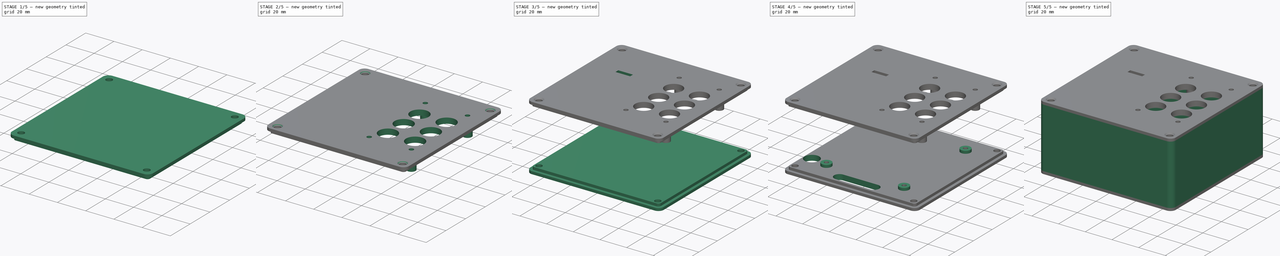
[diagram: build sequence overview — one tinted view per stage of 5, left to right]
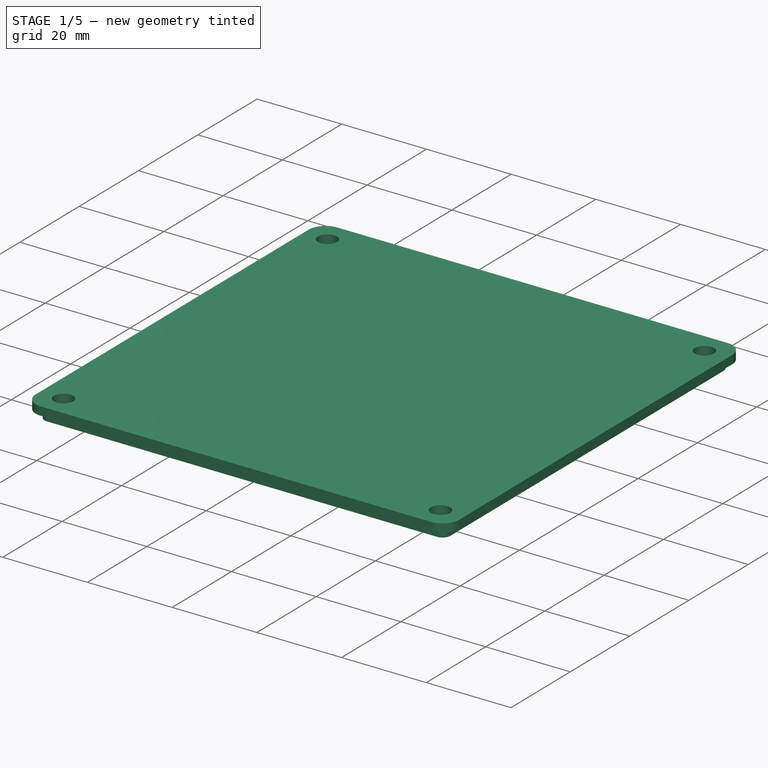
[diagram: stage 1 of 5 — iso view after this stage's code; geometry added in this stage tinted green]
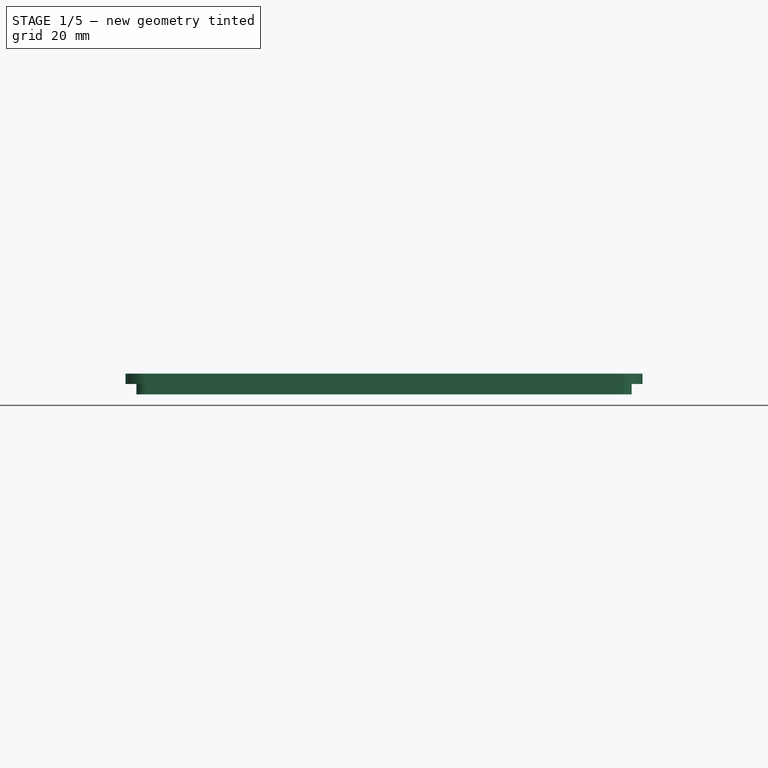
[diagram: stage 1 of 5 — front view after this stage's code; geometry added in this stage tinted green]
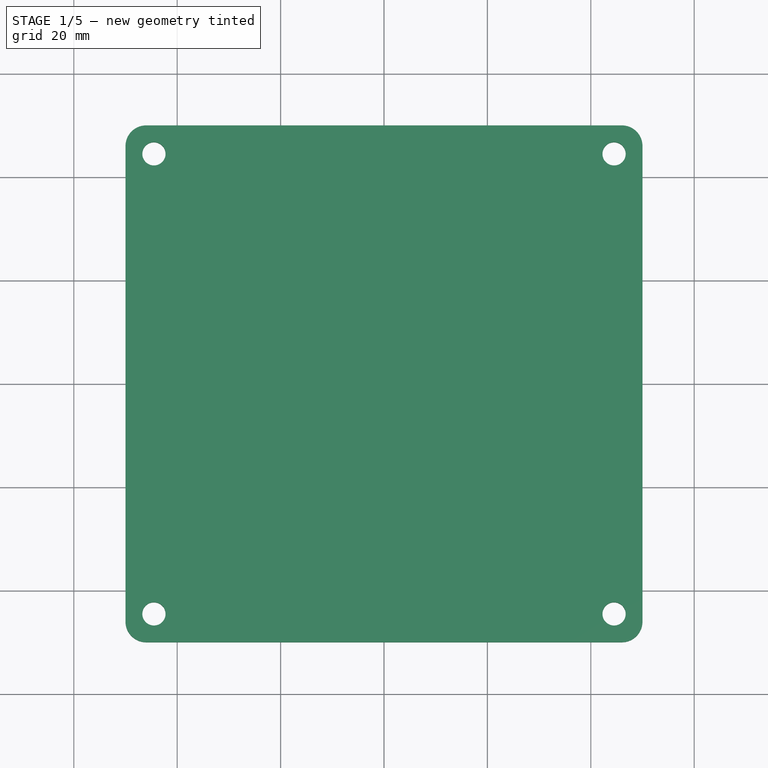
[diagram: stage 1 of 5 — top view after this stage's code; geometry added in this stage tinted green]
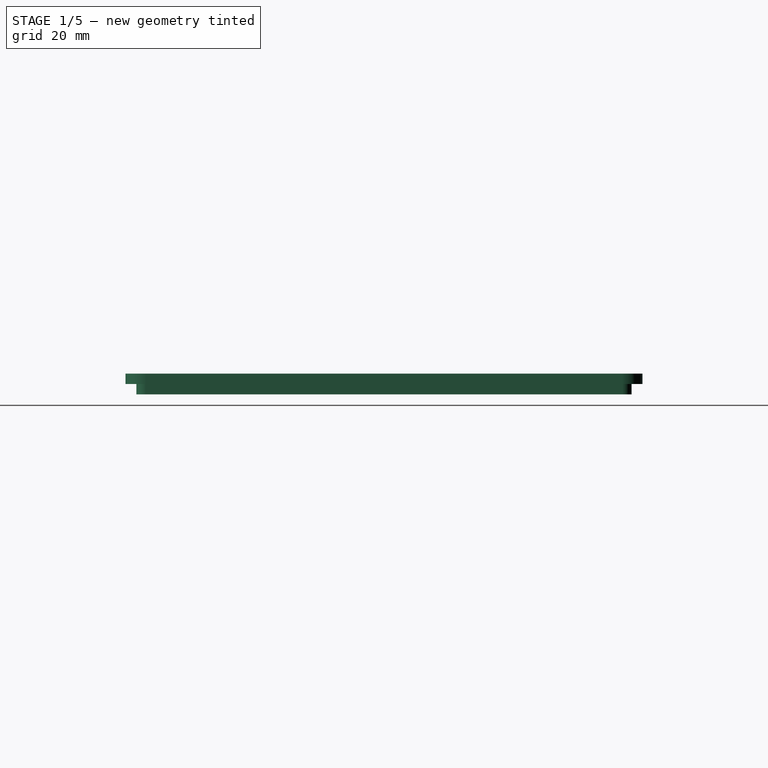
[diagram: stage 1 of 5 — right view after this stage's code; geometry added in this stage tinted green]
FCSTD DOCUMENT  (FreeCAD 0.19R)
Label: dro
License: All rights reserved
LicenseURL: http://en.wikipedia.org/wiki/All_rights_reserved
objects: Sketcher::SketchObject×15, PartDesign::Pad×8, PartDesign::Pocket×7, PartDesign::Mirrored×4, PartDesign::Body×3, PartDesign::MultiTransform×2, Spreadsheet::Sheet×1, PartDesign::Chamfer×1, TechDraw::DrawSVGTemplate×1, TechDraw::DrawViewPart×1, TechDraw::DrawPage×1
note: 56 computed .brp shape members not serialized (recipe doc carries the construction recipe); baked Part::Feature solids carry a one-line shape summary decoded from their .brp

FEATURE [PartDesign::Body] Body  label="Box"
  Group = -> [Sketch,Pad,Sketch002,Pocket,Sketch003,Pad001,MultiTransform,Mirrored,Mirrored001]
  Origin = -> Origin
  Tip = -> MultiTransform
FEATURE [Sketcher::SketchObject] Sketch004
  AttachmentOffset = pos=(0,0,45) rot=(0,0,1;0rad)
  FullyConstrained = true
  MapMode = 5
  Placement = pos=(0,0,45) rot=(0,0,1;0rad)
  Support = -> [XY_Plane001]
  expr: Constraints[16] = Spreadsheet.box_outer_raduis
  expr: Constraints[17] = Spreadsheet.box_outer_width
  expr: Constraints[18] = Spreadsheet.box_outer_length
  expr: .AttachmentOffset.Base.z = Spreadsheet.box_height
  sketch-geometry (8):
    g0: LineSegment StartX=-46 StartY=50 StartZ=0 EndX=46 EndY=50 EndZ=0
    g1: LineSegment StartX=50 StartY=46 StartZ=0 EndX=50 EndY=-46 EndZ=0
    g2: LineSegment StartX=46 StartY=-50 StartZ=0 EndX=-46 EndY=-50 EndZ=0
    g3: LineSegment StartX=-50 StartY=-46 StartZ=0 EndX=-50 EndY=46 EndZ=0
    g4: ArcOfCircle CenterX=-46 CenterY=46 CenterZ=0 NormalX=0 NormalY=0 NormalZ=1 AngleXU=0 Radius=4 StartAngle=1.5708 EndAngle=3.14159
    g5: ArcOfCircle CenterX=-46 CenterY=-46 CenterZ=0 NormalX=0 NormalY=0 NormalZ=1 AngleXU=0 Radius=4 StartAngle=3.14159 EndAngle=4.71239
    g6: ArcOfCircle CenterX=46 CenterY=-46 CenterZ=0 NormalX=0 NormalY=0 NormalZ=1 AngleXU=0 Radius=4 StartAngle=4.71239 EndAngle=6.28319
    g7: ArcOfCircle CenterX=46 CenterY=46 CenterZ=0 NormalX=0 NormalY=0 NormalZ=1 AngleXU=0 Radius=4 StartAngle=4e-16 EndAngle=1.5708
  constraints (19):
    c: Horizontal(g0)
    c: Horizontal(g2)
    c: Vertical(g1)
    c: Vertical(g3)
    c: Tangent(g0,g4) = 1.5708
    c: Tangent(g3,g4) = 1.5708
    c: Tangent(g3,g5) = 1.5708
    c: Tangent(g2,g5) = 1.5708
    c: Tangent(g2,g6) = 1.5708
    c: Tangent(g1,g6) = 1.5708
    c: Tangent(g1,g7) = 1.5708
    c: Tangent(g0,g7) = 1.5708
    c: Symmetric(g4,g6,g-1)
    c: Equal(g4,g7)
    c: Equal(g7,g6)
    c: Equal(g6,g5)
    c: Radius(g4) = 4
    c: DistanceX(g3,g1) = 100
    c: DistanceY(g2,g0) = 100
FEATURE [PartDesign::Pad] Pad002
  Direction = (1,1,1)
  Length = 2
  Length2 = 100
  Profile = -> Sketch004
  Type = 0
  expr: Length = Spreadsheet.box_wall_thickness
FEATURE [Sketcher::SketchObject] Sketch005
  AttachmentOffset = pos=(0,0,45) rot=(0,0,1;0rad)
  FullyConstrained = true
  MapMode = 5
  Placement = pos=(0,0,45) rot=(0,0,1;0rad)
  Support = -> [XY_Plane001]
  expr: Constraints[16] = Spreadsheet.box_inner_raduis - Spreadsheet.clearance_sides
  expr: Constraints[17] = Spreadsheet.box_inner_length - Spreadsheet.clearance_sides
  expr: Constraints[18] = Spreadsheet.box_inner_width - Spreadsheet.clearance_sides
  expr: .AttachmentOffset.Base.z = Spreadsheet.box_height
  sketch-geometry (8):
    g0: LineSegment StartX=-46.1 StartY=47.9 StartZ=0 EndX=46.1 EndY=47.9 EndZ=0
    g1: LineSegment StartX=47.9 StartY=46.1 StartZ=0 EndX=47.9 EndY=-46.1 EndZ=0
    g2: LineSegment StartX=46.1 StartY=-47.9 StartZ=0 EndX=-46.1 EndY=-47.9 EndZ=0
    g3: LineSegment StartX=-47.9 StartY=-46.1 StartZ=0 EndX=-47.9 EndY=46.1 EndZ=0
    g4: ArcOfCircle CenterX=-46.1 CenterY=46.1 CenterZ=0 NormalX=0 NormalY=0 NormalZ=1 AngleXU=0 Radius=1.8 StartAngle=1.5708 EndAngle=3.14159
    g5: ArcOfCircle CenterX=-46.1 CenterY=-46.1 CenterZ=0 NormalX=0 NormalY=0 NormalZ=1 AngleXU=0 Radius=1.8 StartAngle=3.14159 EndAngle=4.71239
    g6: ArcOfCircle CenterX=46.1 CenterY=-46.1 CenterZ=0 NormalX=0 NormalY=0 NormalZ=1 AngleXU=0 Radius=1.8 StartAngle=4.71239 EndAngle=6.28319
    g7: ArcOfCircle CenterX=46.1 CenterY=46.1 CenterZ=0 NormalX=0 NormalY=0 NormalZ=1 AngleXU=0 Radius=1.8 StartAngle=3e-16 EndAngle=1.5708
  constraints (19):
    c: Horizontal(g0)
    c: Horizontal(g2)
    c: Vertical(g1)
    c: Vertical(g3)
    c: Tangent(g0,g4) = 1.5708
    c: Tangent(g3,g4) = 1.5708
    c: Tangent(g3,g5) = 1.5708
    c: Tangent(g2,g5) = 1.5708
    c: Tangent(g2,g6) = 1.5708
    c: Tangent(g1,g6) = 1.5708
    c: Tangent(g1,g7) = 1.5708
    c: Tangent(g0,g7) = 1.5708
    c: Equal(g4,g7)
    c: Equal(g7,g6)
    c: Equal(g6,g5)
    c: Symmetric(g4,g6,g-1)
    c: Radius(g4) = 1.8
    c: DistanceY(g2,g0) = 95.8
    c: DistanceX(g3,g1) = 95.8
FEATURE [PartDesign::Pad] Pad003
  BaseFeature = -> Pad002
  Direction = (1,1,1)
  Length = 2
  Length2 = 100
  Profile = -> Sketch005
  Reversed = true
  Type = 0
  expr: Length = Spreadsheet.box_wall_thickness
FEATURE [Sketcher::SketchObject] Sketch006
  AttachmentOffset = pos=(0,0,43) rot=(0,0,1;0rad)
  FullyConstrained = true
  MapMode = 5
  Placement = pos=(0,0,43) rot=(0,0,1;0rad)
  Support = -> [XY_Plane001]
  expr: Constraints[0] = Spreadsheet.clearance_hole
  expr: Constraints[1] = Spreadsheet.hole_center_width
  expr: Constraints[2] = Spreadsheet.hole_center_length
  expr: .AttachmentOffset.Base.z = Spreadsheet.box_height - Spreadsheet.box_wall_thickness
  sketch-geometry (1):
    g0: Circle CenterX=-44.5 CenterY=44.5 CenterZ=0 NormalX=0 NormalY=0 NormalZ=1 AngleXU=0 Radius=2.25
  constraints (3):
    c: Diameter(g0) = 4.5
    c: DistanceX(g0,g-1) = 44.5
    c: DistanceY(g-1,g0) = 44.5
FEATURE [PartDesign::Pocket] Pocket001
  BaseFeature = -> Pad003
  Length = 5
  Length2 = 100
  Profile = -> Sketch006
  Reversed = true
  Type = 1
FEATURE [PartDesign::Mirrored] Mirrored002
  MirrorPlane = -> XZ_Plane001
FEATURE [PartDesign::Mirrored] Mirrored003
  MirrorPlane = -> Sketch006 [V_Axis]
FEATURE [PartDesign::MultiTransform] MultiTransform001
  BaseFeature = -> Pocket001
  Originals = -> [Pocket001]
  Transformations = -> [Mirrored002,Mirrored003]
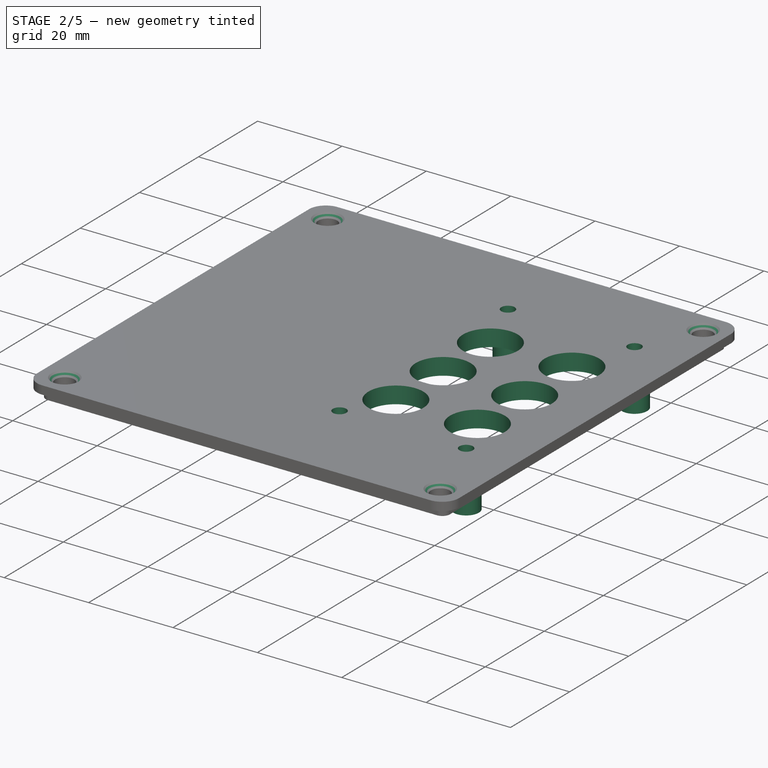
[diagram: stage 2 of 5 — iso view after this stage's code; geometry added in this stage tinted green]
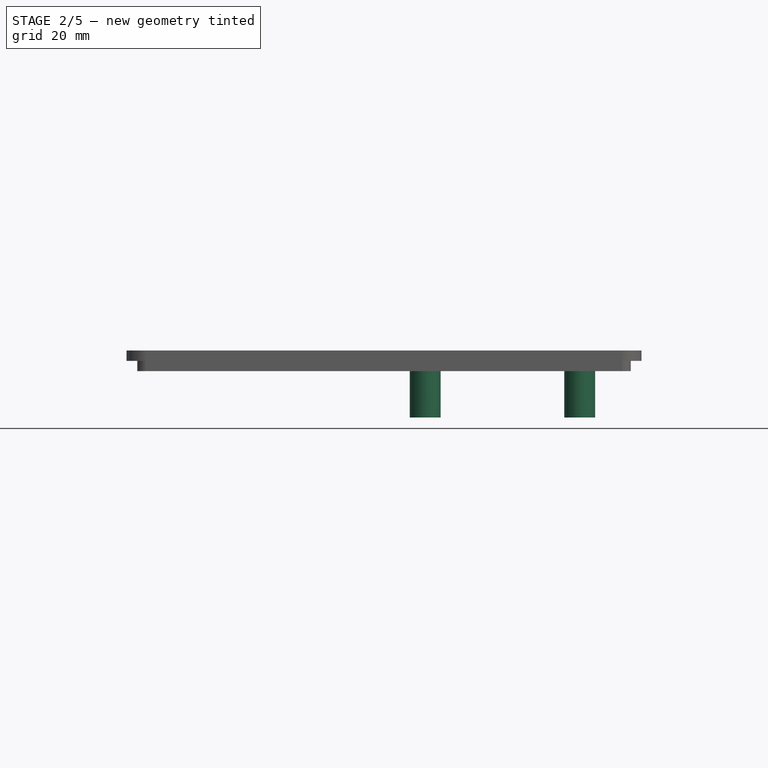
[diagram: stage 2 of 5 — front view after this stage's code; geometry added in this stage tinted green]
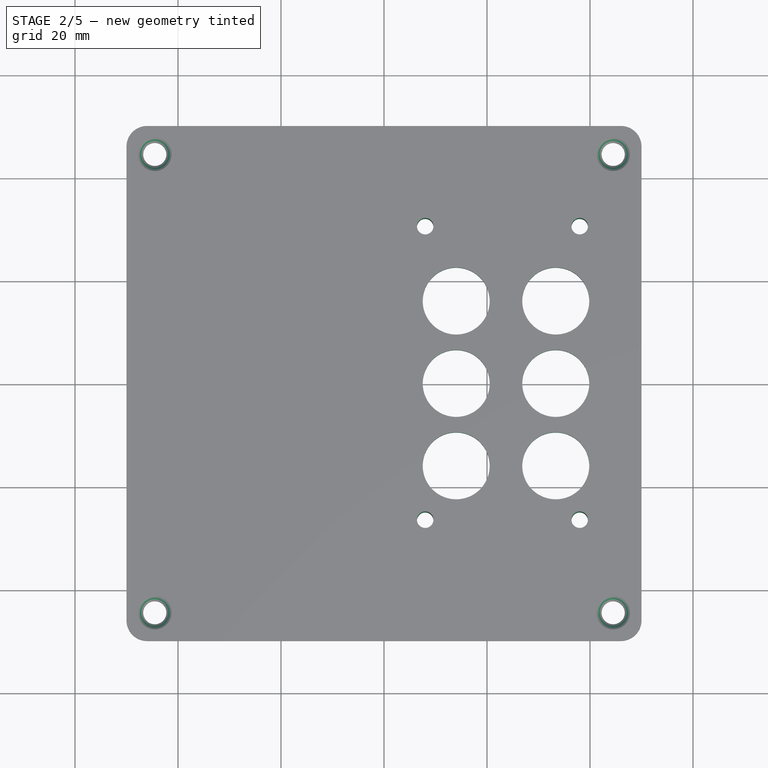
[diagram: stage 2 of 5 — top view after this stage's code; geometry added in this stage tinted green]
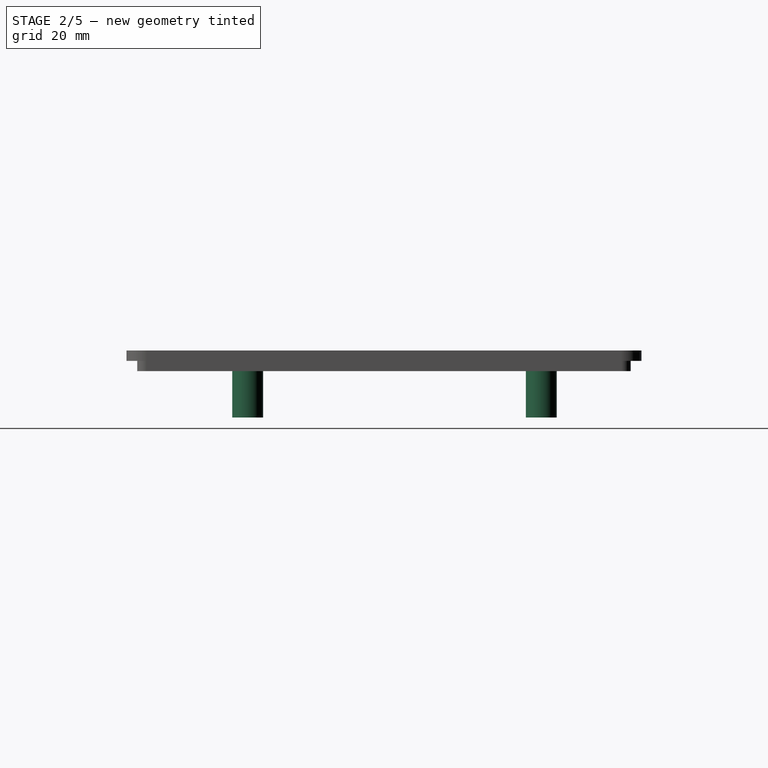
[diagram: stage 2 of 5 — right view after this stage's code; geometry added in this stage tinted green]
FEATURE [PartDesign::Chamfer] Chamfer001
  Angle = 45
  Base = -> MultiTransform001 [Edge32,Edge31,Edge29,Edge30]
  BaseFeature = -> MultiTransform001
  ChamferType = 0
  FlipDirection = false
  Size = 1
  Size2 = 1
  SupportTransform = false
FEATURE [Sketcher::SketchObject] Sketch017
  AttachmentOffset = pos=(0,0,43.7) rot=(0,0,1;0rad)
  FullyConstrained = true
  MapMode = 5
  Placement = pos=(0,0,43.7) rot=(0,0,1;0rad)
  Support = -> [XY_Plane001]
  sketch-geometry (4):
    g0: Circle CenterX=8 CenterY=30.54 CenterZ=0 NormalX=0 NormalY=0 NormalZ=1 AngleXU=0 Radius=3
    g1: Circle CenterX=38 CenterY=30.54 CenterZ=0 NormalX=0 NormalY=0 NormalZ=1 AngleXU=0 Radius=3
    g2: Circle CenterX=8 CenterY=-26.46 CenterZ=0 NormalX=0 NormalY=0 NormalZ=1 AngleXU=0 Radius=3
    g3: Circle CenterX=38 CenterY=-26.46 CenterZ=0 NormalX=0 NormalY=0 NormalZ=1 AngleXU=0 Radius=3
  constraints (12):
    c: Equal(g0,g1)
    c: Equal(g1,g2)
    c: Equal(g2,g3)
    c: Diameter(g0) = 6
    c: DistanceX(g2,g3) = 30
    c: Horizontal(g0,g1)
    c: Horizontal(g2,g3)
    c: Vertical(g2,g0)
    c: DistanceY(g3,g1) = 57
    c: DistanceY(g-1,g1) = 30.54
    c: Vertical(g1,g3)
    c: DistanceX(g-1,g0) = 8
FEATURE [Sketcher::SketchObject] Sketch018
  AttachmentOffset = pos=(0,0,28.6) rot=(0,0,1;0rad)
  FullyConstrained = true
  MapMode = 5
  Placement = pos=(0,0,47) rot=(0,0,1;0rad)
  expr: Constraints[25] = -14.02
  expr: .Placement.Base.z = Spreadsheet.box_height + Spreadsheet.box_wall_thickness
  sketch-geometry (10):
    g0: Circle CenterX=8 CenterY=30.54 CenterZ=0 NormalX=0 NormalY=0 NormalZ=1 AngleXU=0 Radius=1.6
    g1: Circle CenterX=38 CenterY=30.54 CenterZ=0 NormalX=0 NormalY=0 NormalZ=1 AngleXU=0 Radius=1.6
    g2: Circle CenterX=8 CenterY=-26.46 CenterZ=0 NormalX=0 NormalY=0 NormalZ=1 AngleXU=0 Radius=1.6
    g3: Circle CenterX=38 CenterY=-26.46 CenterZ=0 NormalX=0 NormalY=0 NormalZ=1 AngleXU=0 Radius=1.6
    g4: Circle CenterX=33.35 CenterY=16 CenterZ=0 NormalX=0 NormalY=0 NormalZ=1 AngleXU=0 Radius=6.5
    g5: Circle CenterX=14.02 CenterY=16 CenterZ=0 NormalX=0 NormalY=0 NormalZ=1 AngleXU=0 Radius=6.5
    g6: Circle CenterX=33.35 CenterY=1e-16 CenterZ=0 NormalX=0 NormalY=0 NormalZ=1 AngleXU=0 Radius=6.5
    g7: Circle CenterX=14.02 CenterY=1e-16 CenterZ=0 NormalX=0 NormalY=0 NormalZ=1 AngleXU=0 Radius=6.5
    g8: Circle CenterX=14.02 CenterY=-16 CenterZ=0 NormalX=0 NormalY=0 NormalZ=1 AngleXU=0 Radius=6.5
    g9: Circle CenterX=33.35 CenterY=-16 CenterZ=0 NormalX=0 NormalY=0 NormalZ=1 AngleXU=0 Radius=6.5
  constraints (29):
    c: Equal(g0,g1)
    c: Equal(g1,g2)
    c: Equal(g2,g3)
    c: Diameter(g0) = 3.2
    c: Equal(g5,g4)
    c: Equal(g4,g7)
    c: Equal(g7,g6)
    c: Equal(g6,g8)
    c: Equal(g8,g9)
    c: Diameter(g5) = 13
    c: Vertical(g5,g7)
    c: Vertical(g7,g8)
    c: Vertical(g4,g6)
    c: DistanceX(g5,g4) = 19.33
    c: Horizontal(g7,g6)
    c: Horizontal(g8,g9)
    c: DistanceY(g6,g4) = 16
    c: DistanceY(g9,g6) = 16
    c: Symmetric(g4,g9,g-1)
    c: Horizontal(g0,g1)
    c: Horizontal(g2,g3)
    c: Vertical(g2,g0)
    c: DistanceY(g3,g1) = 57
    c: DistanceY(g-1,g1) = 30.54
    c: Vertical(g1,g3)
    c: DistanceX(g5,g-1) = -14.02
    c: DistanceX(g0,g1) = 30
    c: DistanceX(g-1,g2) = 8
    c: Horizontal(g4,g5)
FEATURE [PartDesign::Pad] Pad007
  BaseFeature = -> Chamfer001
  Direction = (1,1,1)
  Length = 9.7
  Length2 = 100
  Profile = -> Sketch017
  Reversed = true
  Type = 0
FEATURE [PartDesign::Pocket] Pocket004
  BaseFeature = -> Pad007
  Length = 20
  Length2 = 100
  Profile = -> Sketch018
  Type = 1
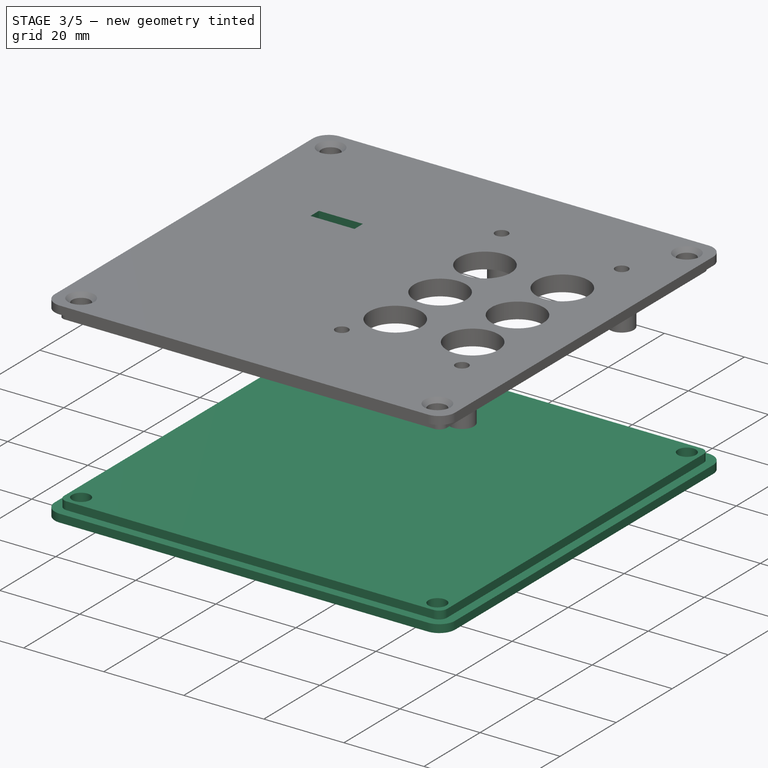
[diagram: stage 3 of 5 — iso view after this stage's code; geometry added in this stage tinted green]
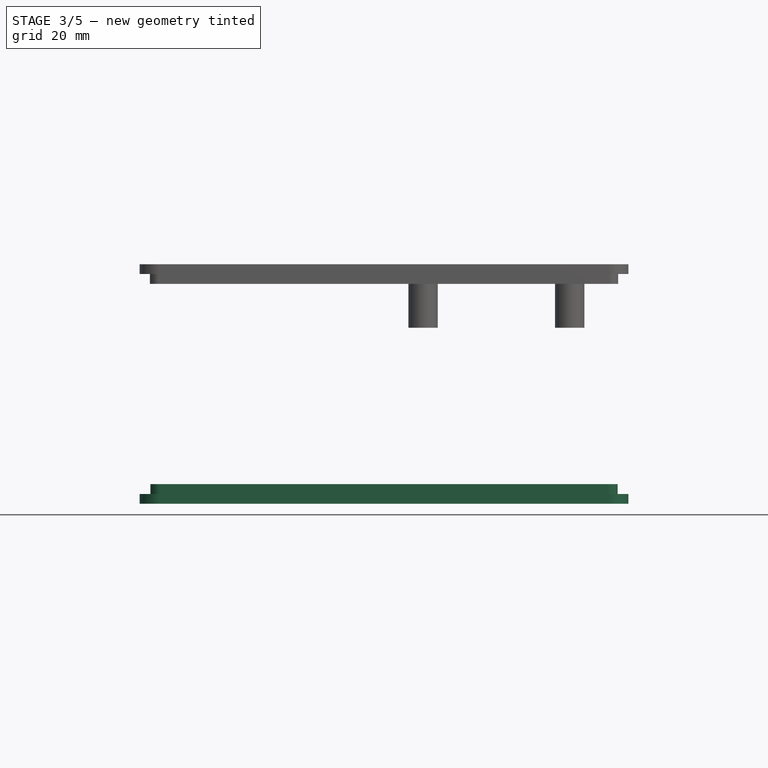
[diagram: stage 3 of 5 — front view after this stage's code; geometry added in this stage tinted green]
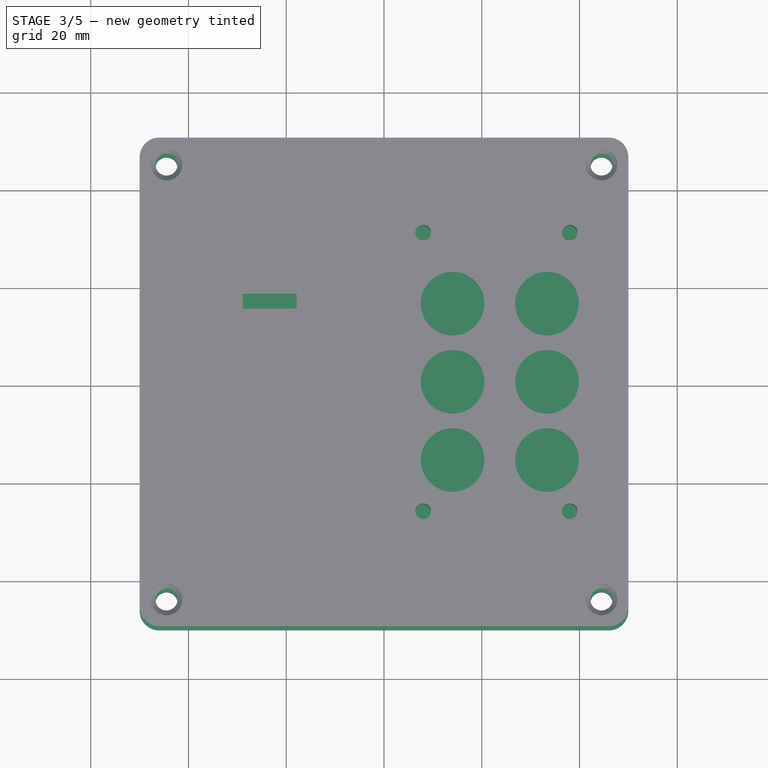
[diagram: stage 3 of 5 — top view after this stage's code; geometry added in this stage tinted green]
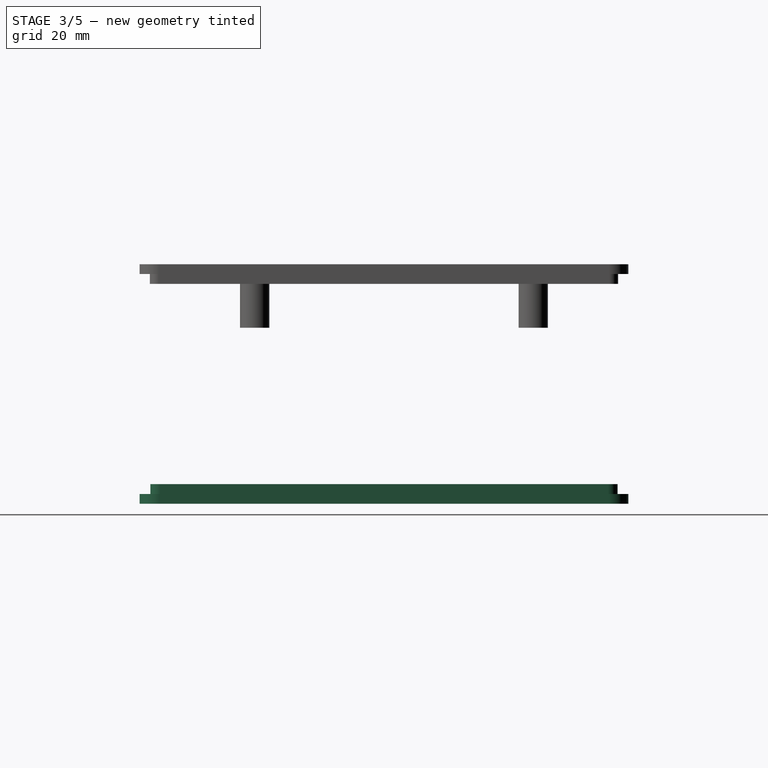
[diagram: stage 3 of 5 — right view after this stage's code; geometry added in this stage tinted green]
FEATURE [Sketcher::SketchObject] Sketch007
  FullyConstrained = true
  MapMode = 5
  Support = -> [XY_Plane002]
  expr: Constraints[16] = Spreadsheet.box_outer_raduis
  expr: Constraints[17] = Spreadsheet.box_outer_width
  expr: Constraints[18] = Spreadsheet.box_outer_length
  sketch-geometry (8):
    g0: LineSegment StartX=-46 StartY=50 StartZ=0 EndX=46 EndY=50 EndZ=0
    g1: LineSegment StartX=50 StartY=46 StartZ=0 EndX=50 EndY=-46 EndZ=0
    g2: LineSegment StartX=46 StartY=-50 StartZ=0 EndX=-46 EndY=-50 EndZ=0
    g3: LineSegment StartX=-50 StartY=-46 StartZ=0 EndX=-50 EndY=46 EndZ=0
    g4: ArcOfCircle CenterX=-46 CenterY=46 CenterZ=0 NormalX=0 NormalY=0 NormalZ=1 AngleXU=0 Radius=4 StartAngle=1.5708 EndAngle=3.14159
    g5: ArcOfCircle CenterX=-46 CenterY=-46 CenterZ=0 NormalX=0 NormalY=0 NormalZ=1 AngleXU=0 Radius=4 StartAngle=3.14159 EndAngle=4.71239
    g6: ArcOfCircle CenterX=46 CenterY=-46 CenterZ=0 NormalX=0 NormalY=0 NormalZ=1 AngleXU=0 Radius=4 StartAngle=4.71239 EndAngle=6.28319
    g7: ArcOfCircle CenterX=46 CenterY=46 CenterZ=0 NormalX=0 NormalY=0 NormalZ=1 AngleXU=0 Radius=4 StartAngle=5e-16 EndAngle=1.5708
  constraints (19):
    c: Horizontal(g0)
    c: Horizontal(g2)
    c: Vertical(g1)
    c: Vertical(g3)
    c: Tangent(g0,g4) = 1.5708
    c: Tangent(g3,g4) = 1.5708
    c: Tangent(g3,g5) = 1.5708
    c: Tangent(g2,g5) = 1.5708
    c: Tangent(g2,g6) = 1.5708
    c: Tangent(g1,g6) = 1.5708
    c: Tangent(g1,g7) = 1.5708
    c: Tangent(g0,g7) = 1.5708
    c: Equal(g4,g7)
    c: Equal(g7,g6)
    c: Equal(g6,g5)
    c: Symmetric(g4,g6,g-1)
    c: Radius(g4) = 4
    c: DistanceX(g3,g1) = 100
    c: DistanceY(g2,g0) = 100
FEATURE [PartDesign::Pad] Pad004
  Direction = (1,1,1)
  Length = 2
  Length2 = 100
  Profile = -> Sketch007
  Reversed = true
  Type = 0
  expr: Length = Spreadsheet.box_wall_thickness
FEATURE [Sketcher::SketchObject] Sketch008
  FullyConstrained = true
  MapMode = 5
  Support = -> [XY_Plane002]
  expr: Constraints[16] = Spreadsheet.box_inner_raduis
  expr: Constraints[17] = Spreadsheet.box_inner_width - 2 * Spreadsheet.clearance_sides
  expr: Constraints[18] = Spreadsheet.box_inner_length - 2 * Spreadsheet.clearance_sides
  sketch-geometry (8):
    g0: LineSegment StartX=-45.8 StartY=47.8 StartZ=0 EndX=45.8 EndY=47.8 EndZ=0
    g1: LineSegment StartX=47.8 StartY=45.8 StartZ=0 EndX=47.8 EndY=-45.8 EndZ=0
    g2: LineSegment StartX=45.8 StartY=-47.8 StartZ=0 EndX=-45.8 EndY=-47.8 EndZ=0
    g3: LineSegment StartX=-47.8 StartY=-45.8 StartZ=0 EndX=-47.8 EndY=45.8 EndZ=0
    g4: ArcOfCircle CenterX=-45.8 CenterY=45.8 CenterZ=0 NormalX=0 NormalY=0 NormalZ=1 AngleXU=0 Radius=2 StartAngle=1.5708 EndAngle=3.14159
    g5: ArcOfCircle CenterX=-45.8 CenterY=-45.8 CenterZ=0 NormalX=0 NormalY=0 NormalZ=1 AngleXU=0 Radius=2 StartAngle=3.14159 EndAngle=4.71239
    g6: ArcOfCircle CenterX=45.8 CenterY=-45.8 CenterZ=0 NormalX=0 NormalY=0 NormalZ=1 AngleXU=0 Radius=2 StartAngle=4.71239 EndAngle=6.28319
    g7: ArcOfCircle CenterX=45.8 CenterY=45.8 CenterZ=0 NormalX=0 NormalY=0 NormalZ=1 AngleXU=0 Radius=2 StartAngle=-9e-16 EndAngle=1.5708
  constraints (19):
    c: Horizontal(g0)
    c: Horizontal(g2)
    c: Vertical(g1)
    c: Vertical(g3)
    c: Tangent(g0,g4) = 1.5708
    c: Tangent(g3,g4) = 1.5708
    c: Tangent(g3,g5) = 1.5708
    c: Tangent(g2,g5) = 1.5708
    c: Tangent(g2,g6) = 1.5708
    c: Tangent(g1,g6) = 1.5708
    c: Tangent(g1,g7) = 1.5708
    c: Tangent(g0,g7) = 1.5708
    c: Equal(g4,g7)
    c: Equal(g7,g6)
    c: Equal(g6,g5)
    c: Symmetric(g4,g6,g-1)
    c: Radius(g4) = 2
    c: DistanceX(g3,g1) = 95.6
    c: DistanceY(g2,g0) = 95.6
FEATURE [PartDesign::Pad] Pad005
  BaseFeature = -> Pad004
  Direction = (1,1,1)
  Length = 2
  Length2 = 100
  Profile = -> Sketch008
  Type = 0
  expr: Length = Spreadsheet.box_wall_thickness
FEATURE [Sketcher::SketchObject] Sketch009
  AttachmentOffset = pos=(0,0,-4) rot=(0,0,1;0rad)
  FullyConstrained = true
  MapMode = 5
  Placement = pos=(0,0,-4) rot=(0,0,1;0rad)
  Support = -> [XY_Plane002]
  expr: Constraints[0] = Spreadsheet.clearance_hole
  expr: Constraints[1] = Spreadsheet.hole_center_length
  expr: Constraints[2] = Spreadsheet.hole_center_width
  expr: .AttachmentOffset.Base.z = Spreadsheet.box_wall_thickness * -2
  sketch-geometry (4):
    g0: Circle CenterX=-44.5 CenterY=44.5 CenterZ=0 NormalX=0 NormalY=0 NormalZ=1 AngleXU=0 Radius=2.25
    g1: Circle CenterX=44.5 CenterY=44.5 CenterZ=0 NormalX=0 NormalY=0 NormalZ=1 AngleXU=0 Radius=2.25
    g2: Circle CenterX=44.5 CenterY=-44.5 CenterZ=0 NormalX=0 NormalY=0 NormalZ=1 AngleXU=0 Radius=2.25
    g3: Circle CenterX=-44.5 CenterY=-44.5 CenterZ=0 NormalX=0 NormalY=0 NormalZ=1 AngleXU=0 Radius=2.25
  constraints (12):
    c: Diameter(g0) = 4.5
    c: DistanceY(g-1,g0) = 44.5
    c: DistanceX(g0,g-1) = 44.5
    c: Equal(g0,g1)
    c: Equal(g1,g2)
    c: Equal(g2,g3)
    c: Horizontal(g0,g1)
    c: Horizontal(g3,g2)
    c: Vertical(g1,g2)
    c: Vertical(g0,g3)
    c: DistanceY(g3,g-1) = 44.5
    c: DistanceX(g-1,g2) = 44.5
FEATURE [PartDesign::Pocket] Pocket002
  BaseFeature = -> Pad005
  Length = 5
  Length2 = 100
  Profile = -> Sketch009
  Reversed = true
  Type = 1
FEATURE [Sketcher::SketchObject] Sketch019
  AttachmentOffset = pos=(0,0,47) rot=(0,0,1;0rad)
  FullyConstrained = true
  MapMode = 5
  Placement = pos=(0,0,47) rot=(0,0,1;0rad)
  Support = -> [XY_Plane001]
  expr: .AttachmentOffset.Base.z = Spreadsheet.box_height + Spreadsheet.box_wall_thickness
  sketch-geometry (4):
    g0: LineSegment StartX=-28.87 StartY=18 StartZ=0 EndX=-17.87 EndY=18 EndZ=0
    g1: LineSegment StartX=-17.87 StartY=18 StartZ=0 EndX=-17.87 EndY=15 EndZ=0
    g2: LineSegment StartX=-17.87 StartY=15 StartZ=0 EndX=-28.87 EndY=15 EndZ=0
    g3: LineSegment StartX=-28.87 StartY=15 StartZ=0 EndX=-28.87 EndY=18 EndZ=0
  constraints (12):
    c: Coincident(g0,g1)
    c: Coincident(g1,g2)
    c: Coincident(g2,g3)
    c: Coincident(g3,g0)
    c: Horizontal(g0)
    c: Horizontal(g2)
    c: Vertical(g1)
    c: Vertical(g3)
    c: DistanceX(g0,g0) = 11
    c: DistanceY(g3,g3) = 3
    c: DistanceX(g1,g-1) = 17.87
    c: DistanceY(g-1,g1) = 15
FEATURE [PartDesign::Pocket] Pocket005
  BaseFeature = -> Pocket004
  Length = 5
  Length2 = 100
  Profile = -> Sketch019
  Type = 0
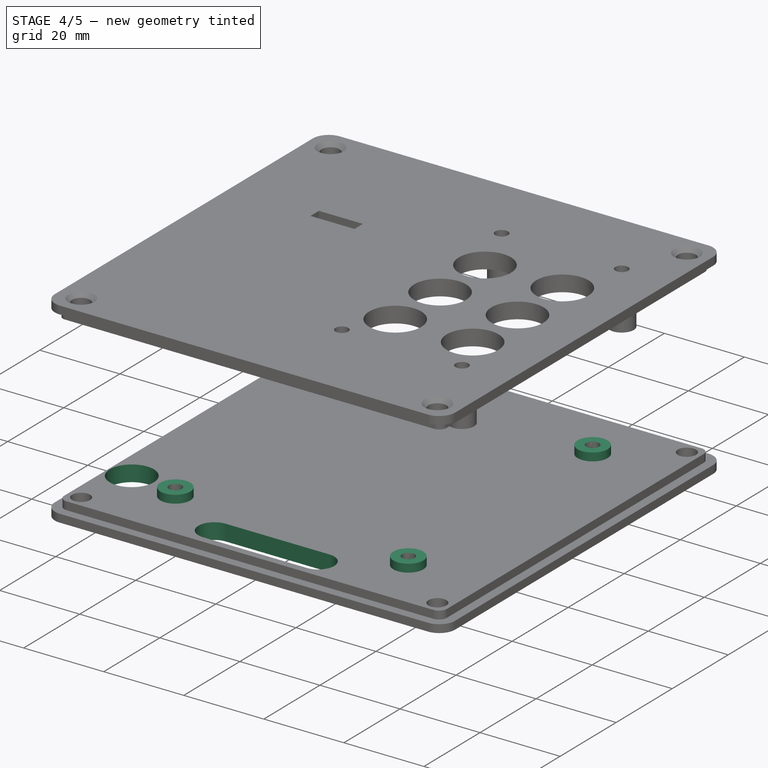
[diagram: stage 4 of 5 — iso view after this stage's code; geometry added in this stage tinted green]
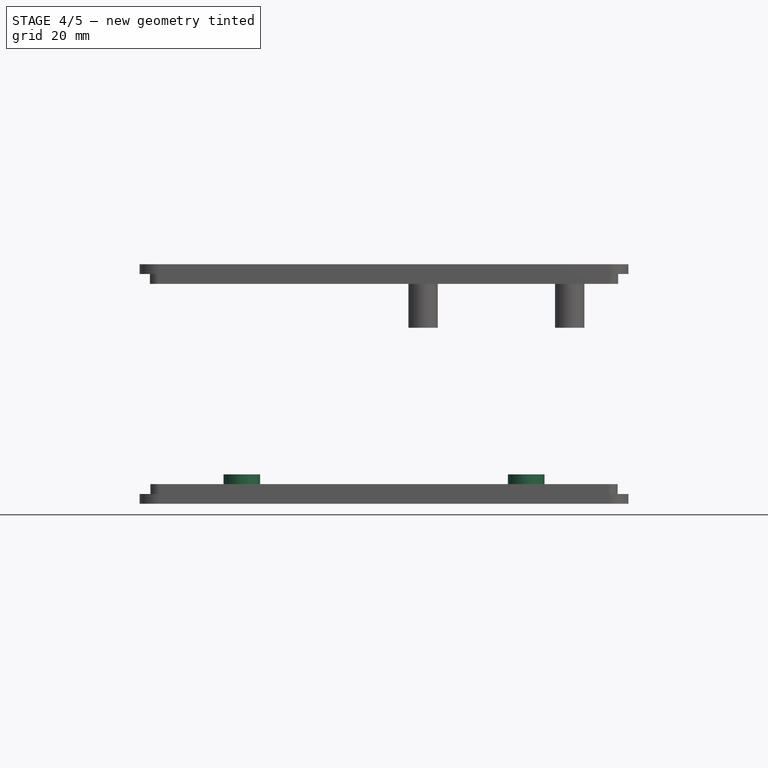
[diagram: stage 4 of 5 — front view after this stage's code; geometry added in this stage tinted green]
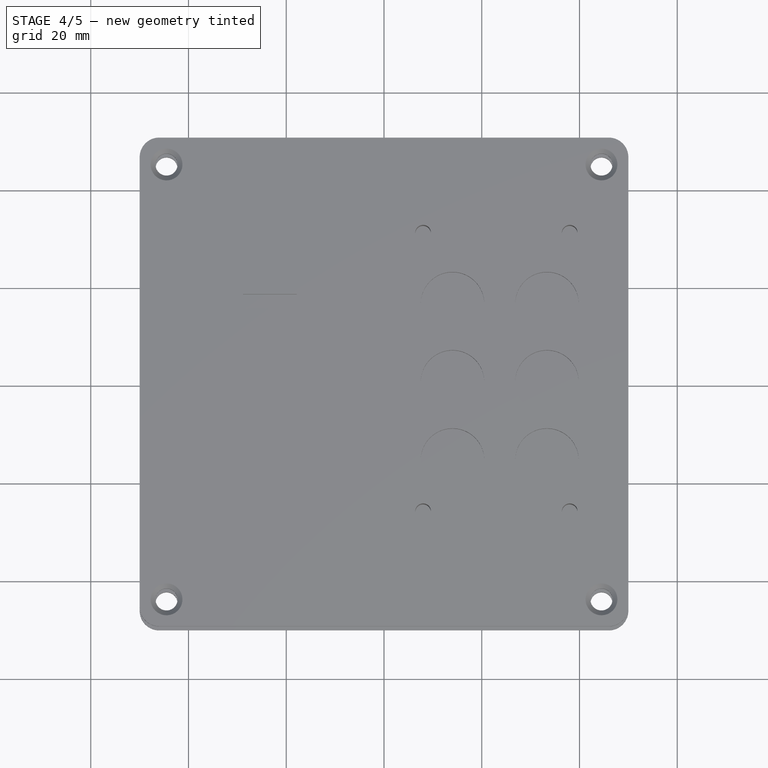
[diagram: stage 4 of 5 — top view after this stage's code; geometry added in this stage tinted green]
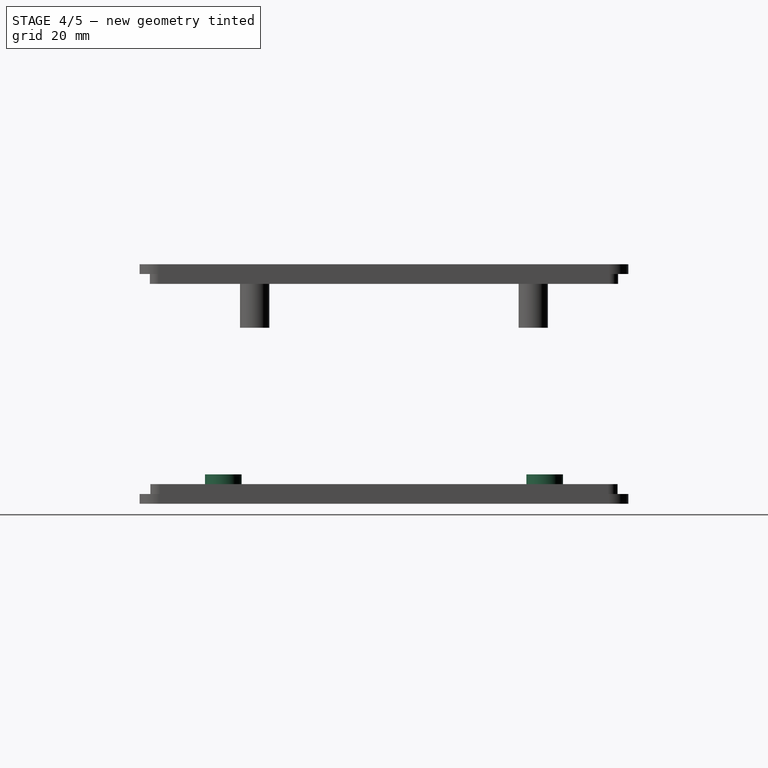
[diagram: stage 4 of 5 — right view after this stage's code; geometry added in this stage tinted green]
FEATURE [Sketcher::SketchObject] Sketch011
  FullyConstrained = true
  MapMode = 5
  Support = -> [XY_Plane002]
  sketch-geometry (4):
    g0: Circle CenterX=-29.1 CenterY=32.875 CenterZ=0 NormalX=0 NormalY=0 NormalZ=1 AngleXU=0 Radius=3.75
    g1: Circle CenterX=29.1 CenterY=32.875 CenterZ=0 NormalX=0 NormalY=0 NormalZ=1 AngleXU=0 Radius=3.75
    g2: Circle CenterX=29.1 CenterY=-32.875 CenterZ=0 NormalX=0 NormalY=0 NormalZ=1 AngleXU=0 Radius=3.75
    g3: Circle CenterX=-29.1 CenterY=-32.875 CenterZ=0 NormalX=0 NormalY=0 NormalZ=1 AngleXU=0 Radius=3.75
  constraints (12):
    c: DistanceX(g0,g-1) = 29.1
    c: DistanceY(g-1,g0) = 32.875
    c: Radius(g0) = 3.75
    c: Equal(g0,g1)
    c: Equal(g1,g2)
    c: Equal(g2,g3)
    c: Vertical(g0,g3)
    c: Vertical(g1,g2)
    c: Horizontal(g0,g1)
    c: Horizontal(g3,g2)
    c: DistanceY(g3,g-1) = 32.875
    c: DistanceX(g-1,g2) = 29.1
FEATURE [PartDesign::Pad] Pad006
  BaseFeature = -> Pocket002
  Direction = (1,1,1)
  Length = 4
  Length2 = 100
  Profile = -> Sketch011
  Type = 0
FEATURE [Sketcher::SketchObject] Sketch012
  FullyConstrained = true
  MapMode = 5
  Support = -> [XY_Plane002]
  sketch-geometry (4):
    g0: Circle CenterX=-29.1 CenterY=32.875 CenterZ=0 NormalX=0 NormalY=0 NormalZ=1 AngleXU=0 Radius=1.6
    g1: Circle CenterX=29.1 CenterY=32.875 CenterZ=0 NormalX=0 NormalY=0 NormalZ=1 AngleXU=0 Radius=1.6
    g2: Circle CenterX=29.1 CenterY=-32.875 CenterZ=0 NormalX=0 NormalY=0 NormalZ=1 AngleXU=0 Radius=1.6
    g3: Circle CenterX=-29.1 CenterY=-32.875 CenterZ=0 NormalX=0 NormalY=0 NormalZ=1 AngleXU=0 Radius=1.6
  constraints (12):
    c: Diameter(g0) = 3.2
    c: DistanceX(g0,g-1) = 29.1
    c: DistanceY(g-1,g0) = 32.875
    c: Equal(g0,g1)
    c: Equal(g1,g2)
    c: Equal(g2,g3)
    c: Horizontal(g0,g1)
    c: Horizontal(g3,g2)
    c: Vertical(g0,g3)
    c: Vertical(g1,g2)
    c: DistanceY(g3,g-1) = 32.875
    c: DistanceX(g-1,g2) = 29.1
FEATURE [PartDesign::Pocket] Pocket003
  BaseFeature = -> Pad006
  Length = 10
  Length2 = 100
  Midplane = true
  Profile = -> Sketch012
  Type = 0
FEATURE [PartDesign::Body] Body001  label="Lid_Top"
  Group = -> [Sketch004,Pad002,Sketch005,Pad003,Sketch006,Pocket001,MultiTransform001,Mirrored002,Mirrored003,Chamfer001,Sketch017,Pad007,Sketch018,Pocket004,Sketch019,Pocket005]
  Origin = -> Origin001
  Tip = -> Pocket005
FEATURE [Sketcher::SketchObject] Sketch020
  AttachmentOffset = pos=(0,0,2) rot=(0,0,1;0rad)
  FullyConstrained = true
  MapMode = 5
  Placement = pos=(0,0,2) rot=(0,0,1;0rad)
  Support = -> [XY_Plane002]
  expr: .AttachmentOffset.Base.z = Spreadsheet.box_wall_thickness
  sketch-geometry (5):
    g0: Circle CenterX=-42 CenterY=-30 CenterZ=0 NormalX=0 NormalY=0 NormalZ=1 AngleXU=0 Radius=5.5
    g1: LineSegment StartX=-12.97 StartY=-38 StartZ=0 EndX=12.97 EndY=-38 EndZ=0
    g2: LineSegment StartX=-12.93 StartY=-45.9998 StartZ=0 EndX=12.93 EndY=-45.9998 EndZ=0
    g3: ArcOfCircle CenterX=-12.97 CenterY=-42 CenterZ=0 NormalX=0 NormalY=0 NormalZ=1 AngleXU=0 Radius=4 StartAngle=1.5708 EndAngle=4.72239
    g4: ArcOfCircle CenterX=12.97 CenterY=-42 CenterZ=0 NormalX=0 NormalY=0 NormalZ=1 AngleXU=0 Radius=4 StartAngle=4.70239 EndAngle=7.85398
  constraints (15):
    c: Diameter(g0) = 11
    c: DistanceX(g0,g-1) = 42
    c: DistanceY(g0,g-1) = 30
    c: DistanceX(g1,g1) = 25.94
    c: Coincident(g3,g1)
    c: Coincident(g3,g2)
    c: DistanceY(g3,g-1) = 42
    c: Radius(g3) = 4
    c: Symmetric(g1,g1,g-2)
    c: Coincident(g4,g2)
    c: Coincident(g4,g1)
    c: Equal(g3,g4)
    c: Symmetric(g2,g2,g-2)
    c: DistanceX(g3,g-1) = 12.97
    c: DistanceX(g2,g2) = 25.86
FEATURE [PartDesign::Pocket] Pocket006
  BaseFeature = -> Pocket003
  Length = 5
  Length2 = 100
  Profile = -> Sketch020
  Type = 0
FEATURE [PartDesign::Body] Body002  label="Lid_Bottom"
  Group = -> [Sketch007,Pad004,Sketch008,Pad005,Sketch009,Pocket002,Sketch011,Pad006,Sketch012,Pocket003,Sketch020,Pocket006]
  Origin = -> Origin002
  Tip = -> Pocket006
FEATURE [TechDraw::DrawSVGTemplate] Template
  Height = 210
  Orientation = 1
  Width = 297
FEATURE [TechDraw::DrawViewPart] View
  CoarseView = false
  Direction = (0,0,-1)
  Focus = 100
  HardHidden = false
  IsoCount = 0
  IsoHidden = false
  IsoVisible = false
  LockPosition = false
  Perspective = false
  Rotation = 0
  ScaleType = 0
  SeamHidden = false
  SeamVisible = true
  SmoothHidden = false
  SmoothVisible = true
  Source = -> [Body001]
  X = 148.5
  XDirection = (1,0,0)
  Y = 105
FEATURE [TechDraw::DrawPage] Page
  KeepUpdated = true
  NextBalloonIndex = 1
  ProjectionType = 0
  Template = -> Template
  Views = -> [View]
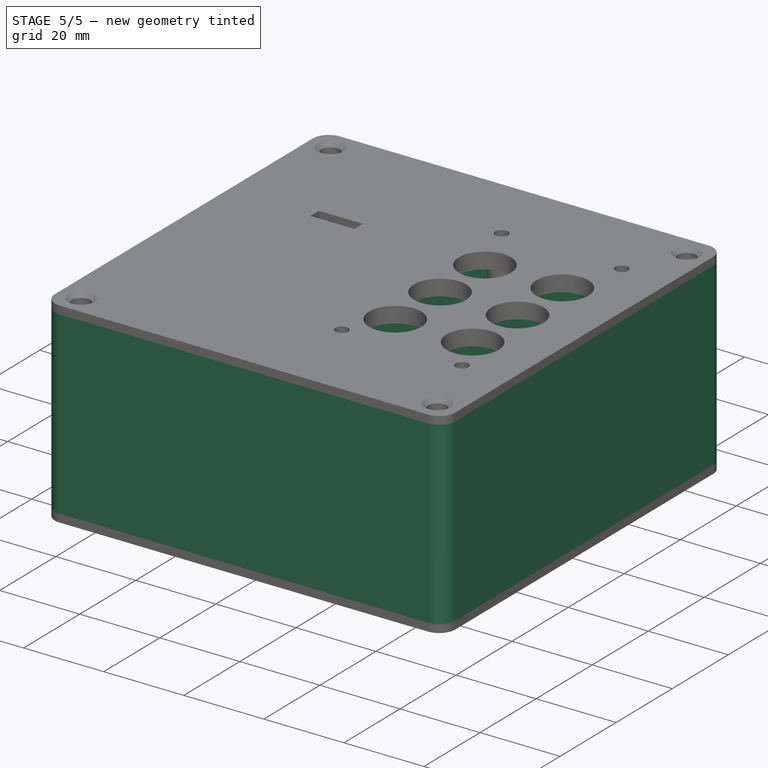
[diagram: stage 5 of 5 — iso view after this stage's code; geometry added in this stage tinted green]
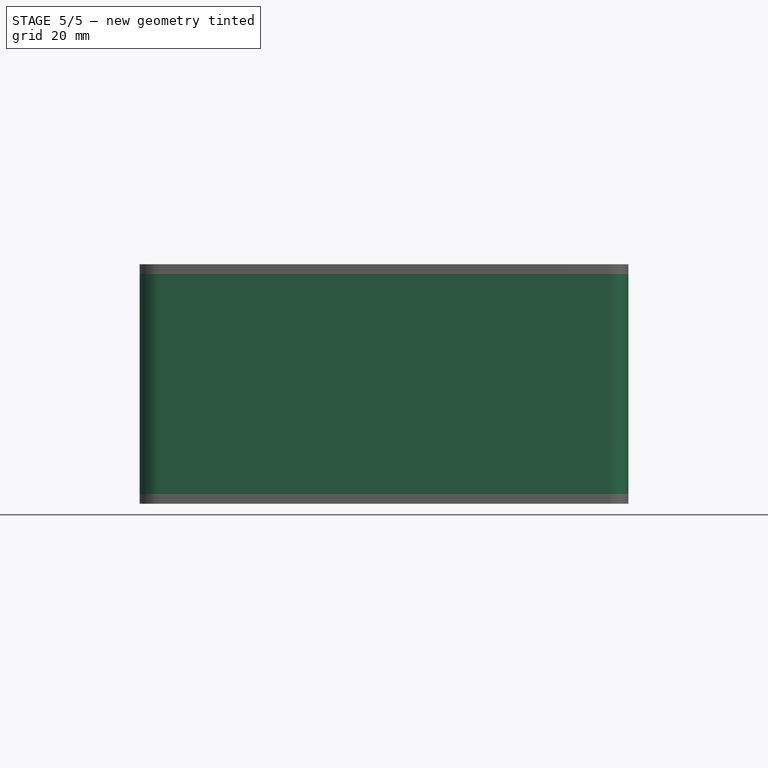
[diagram: stage 5 of 5 — front view after this stage's code; geometry added in this stage tinted green]
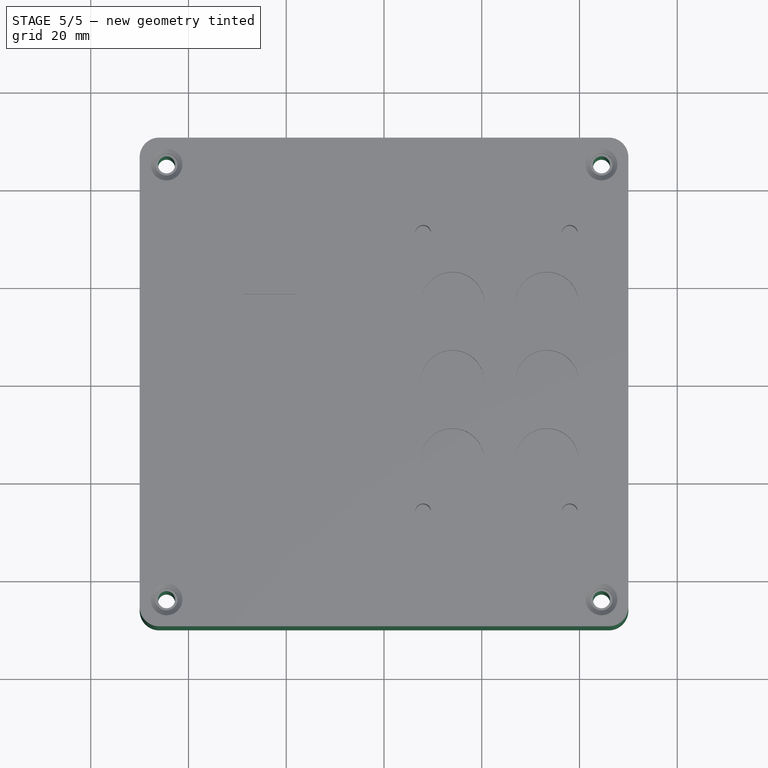
[diagram: stage 5 of 5 — top view after this stage's code; geometry added in this stage tinted green]
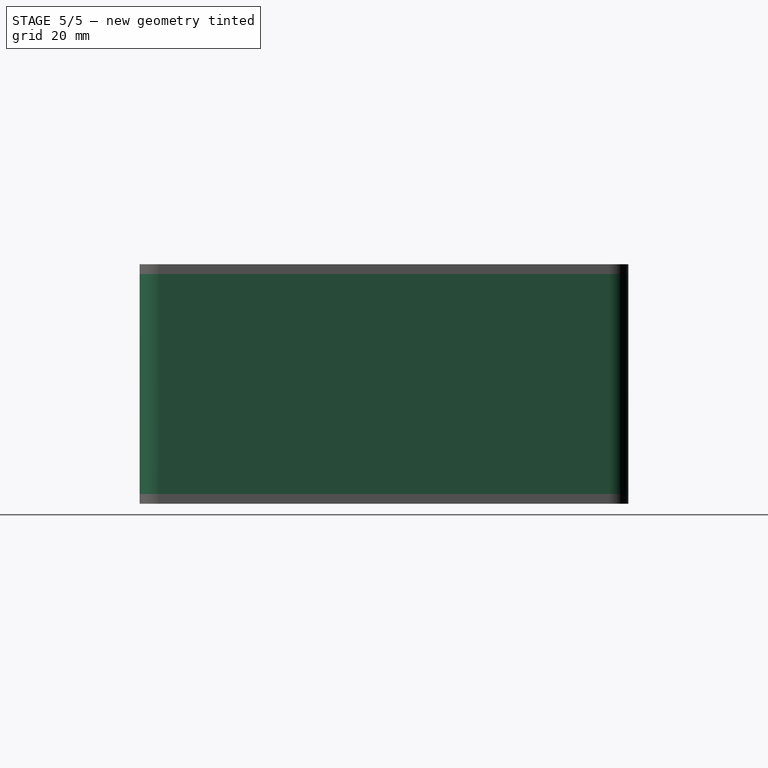
[diagram: stage 5 of 5 — right view after this stage's code; geometry added in this stage tinted green]
FEATURE [Spreadsheet::Sheet] Spreadsheet
  cells = A1=box_height; B1(box_height)=45; A2=box_outer_width; B2(box_outer_width)=100; A3=box_outer_length; B3(box_outer_length)=100; A4=box_outer_raduis; B4(box_outer_raduis)==B5 + 2; C4=Calculated; A5=box_wall_thickness; B5(box_wall_thickness)=2; A6=box_inner_width; B6(box_inner_width)==B2 - 2 * B5; C6=Calculated; A7=box_inner_length; B7(box_inner_length)==B3 - 2 * B5; C7=Calculated; A8=box_inner_raduis; B8(box_inner_raduis)==B4 - B5; C8=Calculated; A9=hole_diameter; B9(hole_diameter)=3.5; A10=lug_height; B10(lug_height)==B1 - 2 * B5; C10=Calculated; A11=lug_raduis; B11(lug_raduis)==B9 * 2.5; C11=Calculated; A12=hole_center_width; B12(hole_center_width)==B6 / 2 - B9; C12=Calculated; A13=hole_center_length; B13(hole_center_length)==B7 / 2 - B9; C13=Calculated; A15=clearance_sides; B15(clearance_sides)=0.2; A16=clearance_hole; B16(clearance_hole)==B9 + 1; C16=Calculated
FEATURE [Sketcher::SketchObject] Sketch
  FullyConstrained = true
  MapMode = 5
  Support = -> [XY_Plane]
  expr: Constraints[16] = Spreadsheet.box_outer_raduis
  expr: Constraints[17] = Spreadsheet.box_outer_length
  expr: Constraints[18] = Spreadsheet.box_outer_width
  sketch-geometry (8):
    g0: LineSegment StartX=-50 StartY=46 StartZ=0 EndX=-50 EndY=-46 EndZ=0
    g1: LineSegment StartX=-46 StartY=-50 StartZ=0 EndX=46 EndY=-50 EndZ=0
    g2: LineSegment StartX=50 StartY=-46 StartZ=0 EndX=50 EndY=46 EndZ=0
    g3: LineSegment StartX=46 StartY=50 StartZ=0 EndX=-46 EndY=50 EndZ=0
    g4: ArcOfCircle CenterX=-46 CenterY=46 CenterZ=0 NormalX=0 NormalY=0 NormalZ=1 AngleXU=0 Radius=4 StartAngle=1.5708 EndAngle=3.14159
    g5: ArcOfCircle CenterX=-46 CenterY=-46 CenterZ=0 NormalX=0 NormalY=0 NormalZ=1 AngleXU=0 Radius=4 StartAngle=3.14159 EndAngle=4.71239
    g6: ArcOfCircle CenterX=46 CenterY=-46 CenterZ=0 NormalX=0 NormalY=0 NormalZ=1 AngleXU=0 Radius=4 StartAngle=4.71239 EndAngle=6.28319
    g7: ArcOfCircle CenterX=46 CenterY=46 CenterZ=0 NormalX=0 NormalY=0 NormalZ=1 AngleXU=0 Radius=4 StartAngle=-9e-16 EndAngle=1.5708
  constraints (19):
    c: Vertical(g0)
    c: Horizontal(g1)
    c: Vertical(g2)
    c: Horizontal(g3)
    c: Tangent(g3,g4) = -1.5708
    c: Tangent(g0,g4) = -1.5708
    c: Tangent(g0,g5) = -1.5708
    c: Tangent(g1,g5) = -1.5708
    c: Tangent(g1,g6) = -1.5708
    c: Tangent(g2,g6) = -1.5708
    c: Tangent(g2,g7) = -1.5708
    c: Tangent(g3,g7) = -1.5708
    c: Symmetric(g4,g6,g-1)
    c: Equal(g4,g7)
    c: Equal(g7,g6)
    c: Equal(g6,g5)
    c: Radius(g4) = 4
    c: DistanceY(g1,g3) = 100
    c: DistanceX(g0,g2) = 100
FEATURE [PartDesign::Pad] Pad
  Direction = (1,1,1)
  Length = 45
  Length2 = 100
  Profile = -> Sketch
  Type = 0
  expr: Length = Spreadsheet.box_height
FEATURE [Sketcher::SketchObject] Sketch002
  FullyConstrained = true
  MapMode = 5
  Support = -> [XY_Plane]
  expr: Constraints[16] = Spreadsheet.box_inner_raduis
  expr: Constraints[17] = Spreadsheet.box_inner_width
  expr: Constraints[18] = Spreadsheet.box_inner_length
  sketch-geometry (8):
    g0: LineSegment StartX=-46 StartY=48 StartZ=0 EndX=46 EndY=48 EndZ=0
    g1: LineSegment StartX=48 StartY=46 StartZ=0 EndX=48 EndY=-46 EndZ=0
    g2: LineSegment StartX=46 StartY=-48 StartZ=0 EndX=-46 EndY=-48 EndZ=0
    g3: LineSegment StartX=-48 StartY=-46 StartZ=0 EndX=-48 EndY=46 EndZ=0
    g4: ArcOfCircle CenterX=-46 CenterY=46 CenterZ=0 NormalX=0 NormalY=0 NormalZ=1 AngleXU=0 Radius=2 StartAngle=1.5708 EndAngle=3.14159
    g5: ArcOfCircle CenterX=-46 CenterY=-46 CenterZ=0 NormalX=0 NormalY=0 NormalZ=1 AngleXU=0 Radius=2 StartAngle=3.14159 EndAngle=4.71239
    g6: ArcOfCircle CenterX=46 CenterY=-46 CenterZ=0 NormalX=0 NormalY=0 NormalZ=1 AngleXU=0 Radius=2 StartAngle=4.71239 EndAngle=6.28319
    g7: ArcOfCircle CenterX=46 CenterY=46 CenterZ=0 NormalX=0 NormalY=0 NormalZ=1 AngleXU=0 Radius=2 StartAngle=7e-16 EndAngle=1.5708
  constraints (19):
    c: Horizontal(g0)
    c: Horizontal(g2)
    c: Vertical(g1)
    c: Vertical(g3)
    c: Tangent(g0,g4) = 1.5708
    c: Tangent(g3,g4) = 1.5708
    c: Tangent(g3,g5) = 1.5708
    c: Tangent(g2,g5) = 1.5708
    c: Tangent(g2,g6) = 1.5708
    c: Tangent(g1,g6) = 1.5708
    c: Tangent(g0,g7) = 1.5708
    c: Tangent(g1,g7) = 1.5708
    c: Symmetric(g4,g6,g-1)
    c: Equal(g4,g7)
    c: Equal(g7,g6)
    c: Equal(g6,g5)
    c: Radius(g4) = 2
    c: DistanceX(g3,g1) = 96
    c: DistanceY(g2,g0) = 96
FEATURE [PartDesign::Pocket] Pocket
  BaseFeature = -> Pad
  Length = 45
  Length2 = 100
  Profile = -> Sketch002
  Reversed = true
  Type = 0
  expr: Length = Spreadsheet.box_height
FEATURE [Sketcher::SketchObject] Sketch003
  AttachmentOffset = pos=(0,0,2) rot=(0,0,1;0rad)
  FullyConstrained = true
  MapMode = 5
  Placement = pos=(0,0,2) rot=(0,0,1;0rad)
  Support = -> [XY_Plane]
  expr: Constraints[5] = Spreadsheet.lug_raduis
  expr: Constraints[6] = Spreadsheet.hole_diameter
  expr: .AttachmentOffset.Base.z = Spreadsheet.box_wall_thickness
  expr: Constraints[7] = Spreadsheet.hole_diameter
  expr: Constraints[13] = Spreadsheet.lug_raduis - Spreadsheet.box_inner_raduis
  expr: Constraints[8] = Spreadsheet.hole_center_width
  expr: Constraints[4] = Spreadsheet.hole_diameter
  expr: Constraints[9] = Spreadsheet.hole_center_length
  expr: Constraints[12] = Spreadsheet.box_inner_raduis
  sketch-geometry (5):
    g0: LineSegment StartX=-48 StartY=39.25 StartZ=0 EndX=-48 EndY=46 EndZ=0
    g1: LineSegment StartX=-46 StartY=48 StartZ=0 EndX=-39.25 EndY=48 EndZ=0
    g2: ArcOfCircle CenterX=-48 CenterY=48 CenterZ=0 NormalX=0 NormalY=0 NormalZ=1 AngleXU=0 Radius=8.75 StartAngle=4.71239 EndAngle=6.28319
    g3: Circle CenterX=-44.5 CenterY=44.5 CenterZ=0 NormalX=0 NormalY=0 NormalZ=1 AngleXU=0 Radius=1.75
    g4: ArcOfCircle CenterX=-46 CenterY=46 CenterZ=0 NormalX=0 NormalY=0 NormalZ=1 AngleXU=0 Radius=2 StartAngle=1.5708 EndAngle=3.14159
  constraints (15):
    c: Vertical(g0)
    c: Horizontal(g1)
    c: Coincident(g2,g0)
    c: Coincident(g1,g2)
    c: Diameter(g3) = 3.5
    c: Radius(g2) = 8.75
    c: DistanceY(g3,g2) = 3.5
    c: DistanceX(g2,g3) = 3.5
    c: DistanceX(g3,g-1) = 44.5
    c: DistanceY(g-1,g3) = 44.5
    c: Tangent(g1,g4) = 1.5708
    c: Tangent(g0,g4) = 1.5708
    c: Radius(g4) = 2
    c: DistanceX(g1,g1) = 6.75
    c: Equal(g0,g1)
FEATURE [PartDesign::Pad] Pad001
  BaseFeature = -> Pocket
  Direction = (1,1,1)
  Length = 41
  Length2 = 100
  Profile = -> Sketch003
  Type = 0
  expr: Length = Spreadsheet.lug_height
FEATURE [PartDesign::Mirrored] Mirrored
  MirrorPlane = -> Sketch003 [V_Axis]
FEATURE [PartDesign::Mirrored] Mirrored001
  MirrorPlane = -> XZ_Plane
FEATURE [PartDesign::MultiTransform] MultiTransform
  BaseFeature = -> Pad001
  Originals = -> [Pad001]
  Transformations = -> [Mirrored,Mirrored001]
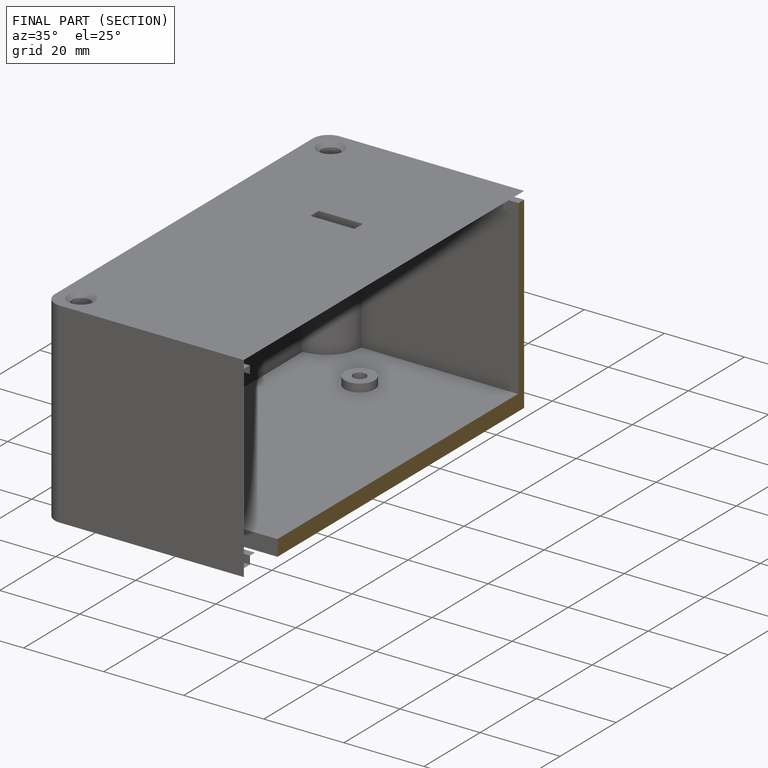
[diagram: finished part — half-section view (interior)]
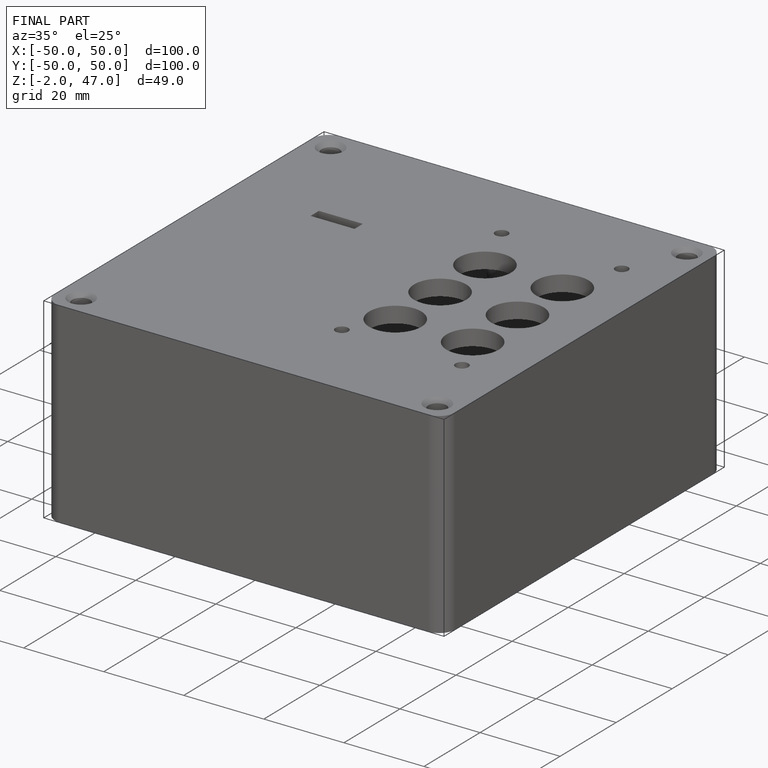
[diagram: finished part — iso view with bounding-box wireframe]
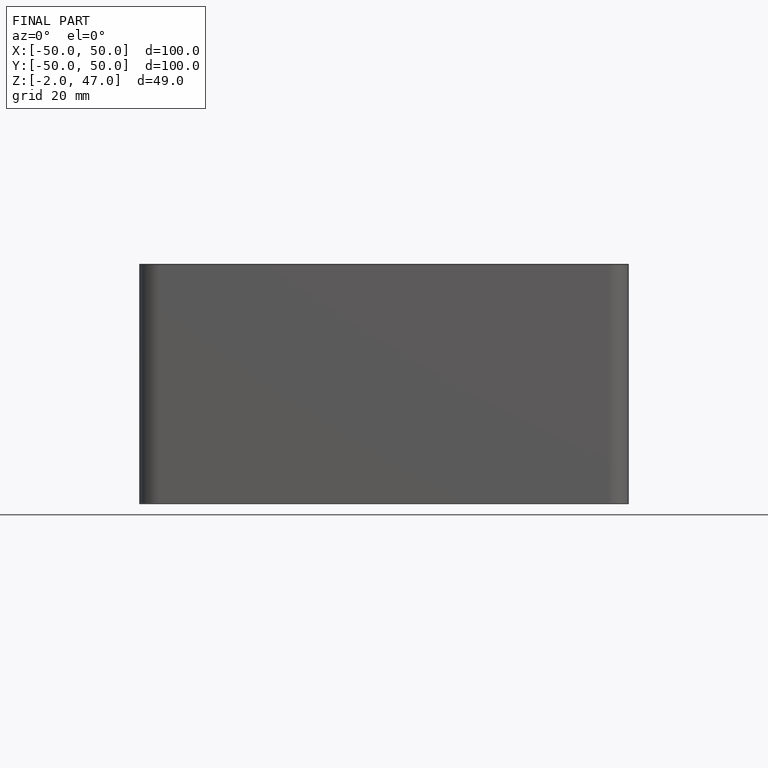
[diagram: finished part — front view with bounding-box wireframe]
